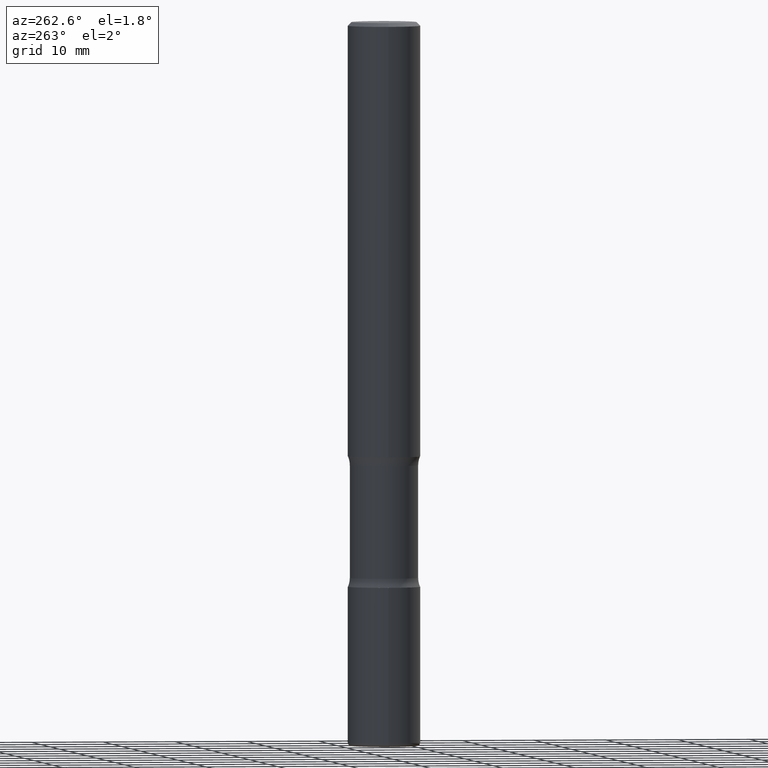
[diagram: clean part render]
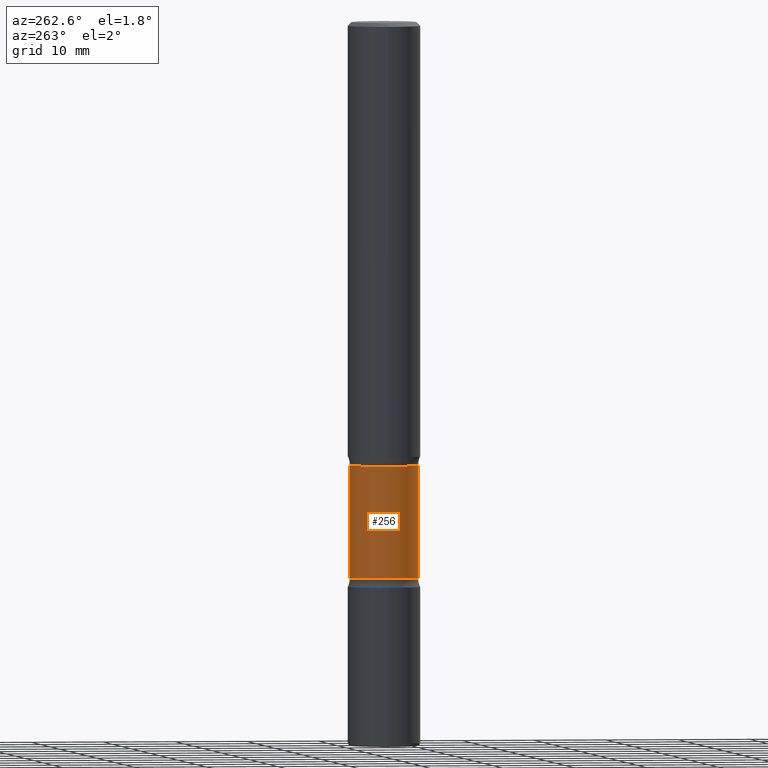
[diagram: same view with one face highlighted and labeled with its STEP entity id]
A machine part, auxiliary view. The second image highlights one B-rep face of the part: STEP entity #256.
In plain terms, the highlighted cylindrical surface (edge-blend (fillet) strip) has radius 4.7498 mm, axis along (0, -0, -1).
Its self-contained STEP definition (entity closure, byte-faithful):
#10 = EDGE_CURVE ( 'NONE', #191, #338, #199, .T. ) ;
#11 = AXIS2_PLACEMENT_3D ( 'NONE', #425, #376, #305 ) ;
#12 = VERTEX_POINT ( 'NONE', #237 ) ;
#28 = AXIS2_PLACEMENT_3D ( 'NONE', #174, #246, #81 ) ;
#41 = CARTESIAN_POINT ( 'NONE',  ( 1.305814020727429425E-15, 0.1869999999999864548, -3.937000000000000721 ) ) ;
#73 = DIRECTION ( 'NONE',  ( 2.540626945080028130E-29, -3.355209467880745729E-15, -1.000000000000000000 ) ) ;
#81 = DIRECTION ( 'NONE',  ( 6.982962677686266711E-15, 1.000000000000000000, -2.921762560068729411E-15 ) ) ;
#85 = EDGE_CURVE ( 'NONE', #191, #368, #471, .T. ) ;
#89 = VECTOR ( 'NONE', #73, 39.37007874015748143 ) ;
#126 = ORIENTED_EDGE ( 'NONE', *, *, #85, .T. ) ;
#128 = CARTESIAN_POINT ( 'NONE',  ( 1.305814020727390771E-15, 0.1869999999999916174, -2.410836174808470567 ) ) ;
#150 = CARTESIAN_POINT ( 'NONE',  ( -1.316701078222244837E-15, -0.1870000000000086315, -2.410836174808469679 ) ) ;
#172 = CARTESIAN_POINT ( 'NONE',  ( -1.316701078222226890E-15, -0.1870000000000106022, -3.022263825191529918 ) ) ;
#174 = CARTESIAN_POINT ( 'NONE',  ( 9.710227154047748282E-29, -1.362793696358492956E-14, -3.937000000000000277 ) ) ;
#176 = VECTOR ( 'NONE', #377, 39.37007874015748143 ) ;
#187 = CARTESIAN_POINT ( 'NONE',  ( 7.386223780689915972E-29, -1.055880548925453445E-14, -3.022263825191530362 ) ) ;
#191 = VERTEX_POINT ( 'NONE', #150 ) ;
#199 = LINE ( 'NONE', #456, #89 ) ;
#237 = CARTESIAN_POINT ( 'NONE',  ( 1.305814020727405957E-15, 0.1869999999999895079, -3.022263825191530806 ) ) ;
#246 = DIRECTION ( 'NONE',  ( 2.540626945080028130E-29, -3.355209467880746123E-15, -1.000000000000000000 ) ) ;
#256 = ADVANCED_FACE ( 'NONE', ( #369 ), #462, .T. ) ;
#265 = EDGE_LOOP ( 'NONE', ( #397, #126, #360, #309 ) ) ;
#305 = DIRECTION ( 'NONE',  ( 6.982962677686266711E-15, 1.000000000000000000, -2.921762560068729017E-15 ) ) ;
#309 = ORIENTED_EDGE ( 'NONE', *, *, #510, .F. ) ;
#322 = DIRECTION ( 'NONE',  ( 2.540626945080028130E-29, -3.355209467880746123E-15, -1.000000000000000000 ) ) ;
#338 = VERTEX_POINT ( 'NONE', #172 ) ;
#360 = ORIENTED_EDGE ( 'NONE', *, *, #433, .T. ) ;
#368 = VERTEX_POINT ( 'NONE', #128 ) ;
#369 = FACE_OUTER_BOUND ( 'NONE', #265, .T. ) ;
#376 = DIRECTION ( 'NONE',  ( 2.540626945080028130E-29, -3.355209467880746123E-15, -1.000000000000000000 ) ) ;
#377 = DIRECTION ( 'NONE',  ( 2.540626945080028130E-29, -3.355209467880745729E-15, -1.000000000000000000 ) ) ;
#397 = ORIENTED_EDGE ( 'NONE', *, *, #10, .F. ) ;
#425 = CARTESIAN_POINT ( 'NONE',  ( 5.832814217159742143E-29, -8.507337647765213396E-15, -2.410836174808470123 ) ) ;
#433 = EDGE_CURVE ( 'NONE', #368, #12, #557, .T. ) ;
#456 = CARTESIAN_POINT ( 'NONE',  ( -1.282913125583179628E-15, -0.1870000000000137108, -3.936999999999999389 ) ) ;
#462 = CYLINDRICAL_SURFACE ( 'NONE', #28, 0.1870000000000000828 ) ;
#471 = CIRCLE ( 'NONE', #11, 0.1870000000000001106 ) ;
#487 = AXIS2_PLACEMENT_3D ( 'NONE', #187, #322, #493 ) ;
#493 = DIRECTION ( 'NONE',  ( 6.982962677686266711E-15, 1.000000000000000000, -2.921762560068729806E-15 ) ) ;
#510 = EDGE_CURVE ( 'NONE', #338, #12, #558, .T. ) ;
#557 = LINE ( 'NONE', #41, #176 ) ;
#558 = CIRCLE ( 'NONE', #487, 0.1870000000000000551 ) ;